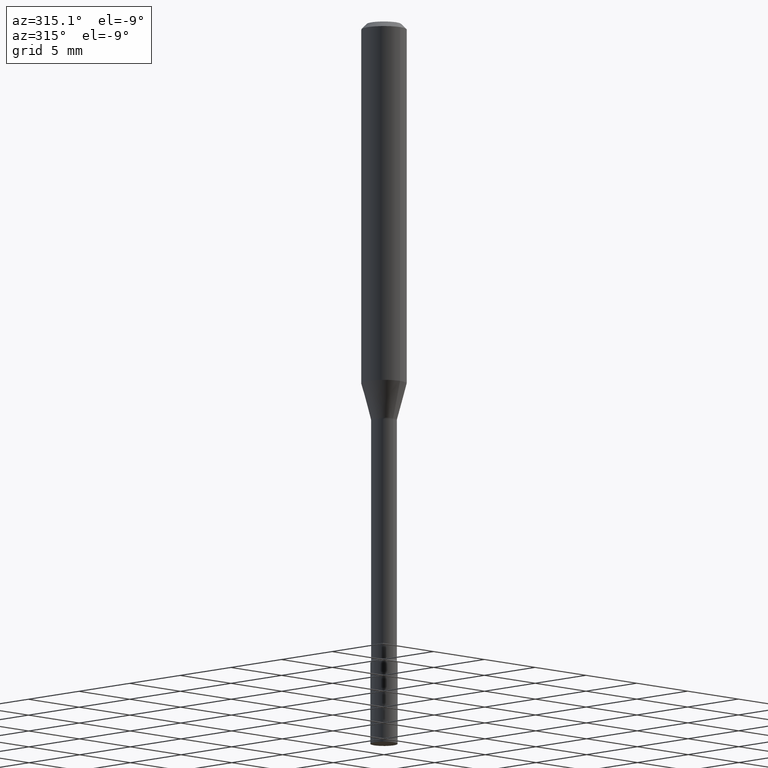
[diagram: clean part render]
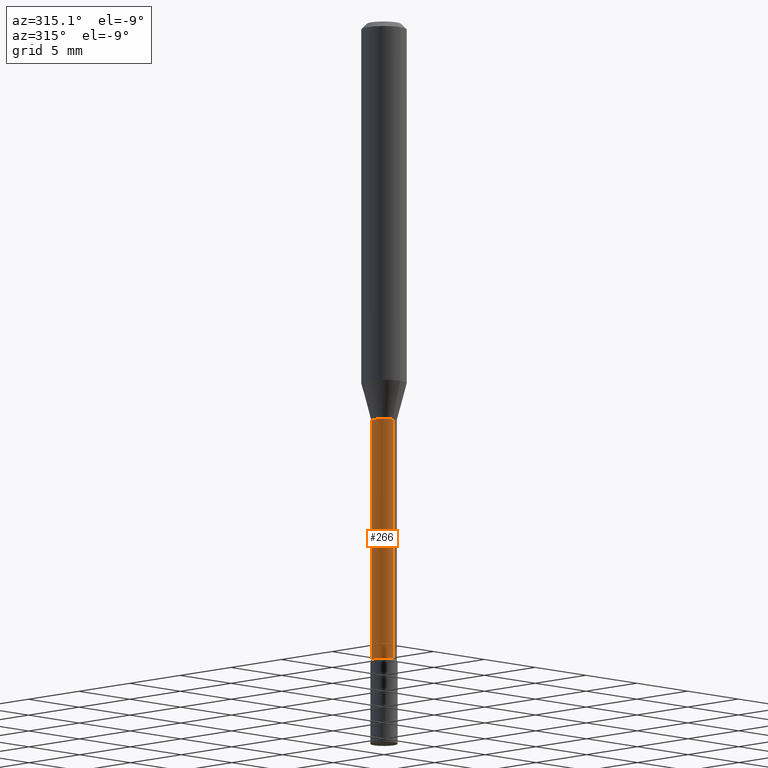
[diagram: same view with one face highlighted and labeled with its STEP entity id]
A machine part, auxiliary view. The second image highlights one B-rep face of the part: STEP entity #266.
In plain terms, the highlighted cylindrical surface (edge-blend (fillet) strip) has radius 0.8954 mm, axis along (-0, 0, 1).
Its self-contained STEP definition (entity closure, byte-faithful):
#22 = AXIS2_PLACEMENT_3D ( 'NONE', #132, #173, #407 ) ;
#28 = EDGE_CURVE ( 'NONE', #326, #428, #251, .T. ) ;
#43 = AXIS2_PLACEMENT_3D ( 'NONE', #308, #423, #473 ) ;
#51 = VERTEX_POINT ( 'NONE', #207 ) ;
#54 = AXIS2_PLACEMENT_3D ( 'NONE', #336, #237, #502 ) ;
#55 = ORIENTED_EDGE ( 'NONE', *, *, #484, .F. ) ;
#92 = VECTOR ( 'NONE', #104, 39.37007874015748143 ) ;
#104 = DIRECTION ( 'NONE',  ( -2.445461058978122069E-29, 3.491492433284533823E-15, 1.000000000000000000 ) ) ;
#120 = EDGE_CURVE ( 'NONE', #51, #288, #343, .T. ) ;
#125 = VECTOR ( 'NONE', #318, 39.37007874015748143 ) ;
#132 = CARTESIAN_POINT ( 'NONE',  ( 2.694836430718442103E-29, -3.847536632100227789E-15, -1.101974787463810834 ) ) ;
#149 = CARTESIAN_POINT ( 'NONE',  ( -2.461494343884138594E-16, -0.03525000000000384076, -1.101974787463810834 ) ) ;
#161 = CIRCLE ( 'NONE', #22, 0.03524999999999999661 ) ;
#173 = DIRECTION ( 'NONE',  ( -2.445461058978122069E-29, 3.491492433284533823E-15, 1.000000000000000000 ) ) ;
#207 = CARTESIAN_POINT ( 'NONE',  ( -2.461494343883982794E-16, -0.03525000000000625550, -1.767098259685360606 ) ) ;
#215 = CARTESIAN_POINT ( 'NONE',  ( 2.504663143554787774E-16, 0.03524999999999615247, -1.101974787463811056 ) ) ;
#236 = ORIENTED_EDGE ( 'NONE', *, *, #249, .T. ) ;
#237 = DIRECTION ( 'NONE',  ( -2.445461058978122069E-29, 3.491492433284533823E-15, 1.000000000000000000 ) ) ;
#241 = CARTESIAN_POINT ( 'NONE',  ( 2.584599201327800595E-16, 0.03524999999999392508, -1.767098259685360606 ) ) ;
#246 = ORIENTED_EDGE ( 'NONE', *, *, #28, .F. ) ;
#249 = EDGE_CURVE ( 'NONE', #326, #51, #268, .T. ) ;
#251 = LINE ( 'NONE', #444, #125 ) ;
#266 = ADVANCED_FACE ( 'NONE', ( #508 ), #342, .T. ) ;
#268 = CIRCLE ( 'NONE', #54, 0.03525000000000008682 ) ;
#288 = VERTEX_POINT ( 'NONE', #149 ) ;
#308 = CARTESIAN_POINT ( 'NONE',  ( 0.000000000000000000, 0.000000000000000000, 0.000000000000000000 ) ) ;
#318 = DIRECTION ( 'NONE',  ( -2.445461058978122069E-29, 3.491492433284533823E-15, 1.000000000000000000 ) ) ;
#326 = VERTEX_POINT ( 'NONE', #241 ) ;
#336 = CARTESIAN_POINT ( 'NONE',  ( 4.321369981448559219E-29, -6.169810202561705812E-15, -1.767098259685360606 ) ) ;
#342 = CYLINDRICAL_SURFACE ( 'NONE', #43, 0.03525000000000003825 ) ;
#343 = LINE ( 'NONE', #418, #92 ) ;
#407 = DIRECTION ( 'NONE',  ( -6.982962677686265133E-15, -1.000000000000000000, 3.874961693140799059E-15 ) ) ;
#418 = CARTESIAN_POINT ( 'NONE',  ( -2.461494343884411737E-16, -0.03525000000000003825, 1.230751082732799542E-16 ) ) ;
#423 = DIRECTION ( 'NONE',  ( -2.445461058978122069E-29, 3.491492433284533823E-15, 1.000000000000000000 ) ) ;
#428 = VERTEX_POINT ( 'NONE', #215 ) ;
#434 = EDGE_LOOP ( 'NONE', ( #246, #236, #451, #55 ) ) ;
#444 = CARTESIAN_POINT ( 'NONE',  ( 2.504663143554355873E-16, 0.03525000000000003825, -1.230751082732799542E-16 ) ) ;
#451 = ORIENTED_EDGE ( 'NONE', *, *, #120, .T. ) ;
#473 = DIRECTION ( 'NONE',  ( -6.982962677686266711E-15, -1.000000000000000000, 3.491492433284533823E-15 ) ) ;
#484 = EDGE_CURVE ( 'NONE', #428, #288, #161, .T. ) ;
#502 = DIRECTION ( 'NONE',  ( -6.982962677686266711E-15, -1.000000000000000000, 0.000000000000000000 ) ) ;
#508 = FACE_OUTER_BOUND ( 'NONE', #434, .T. ) ;